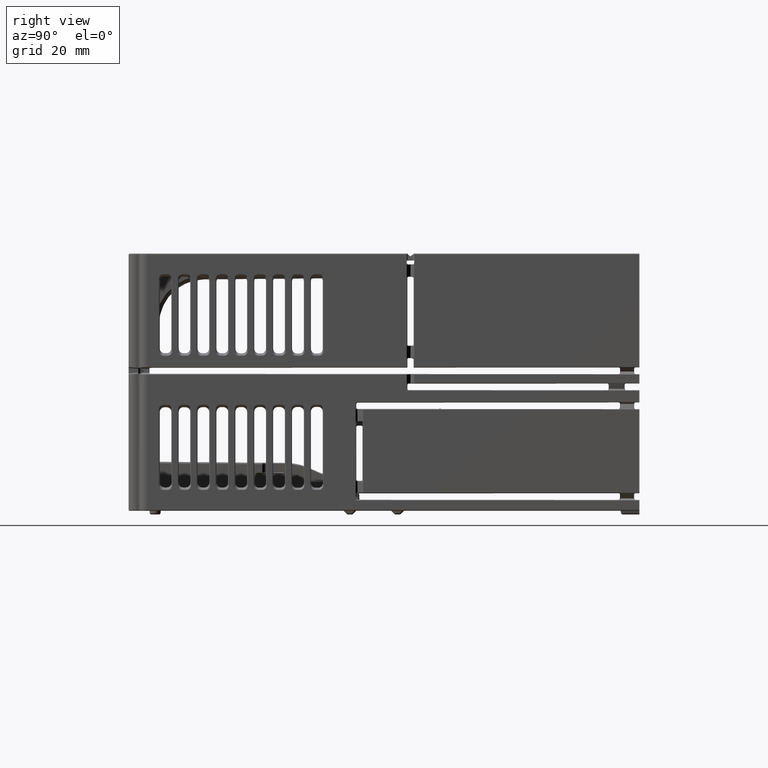
[diagram: clean part render]
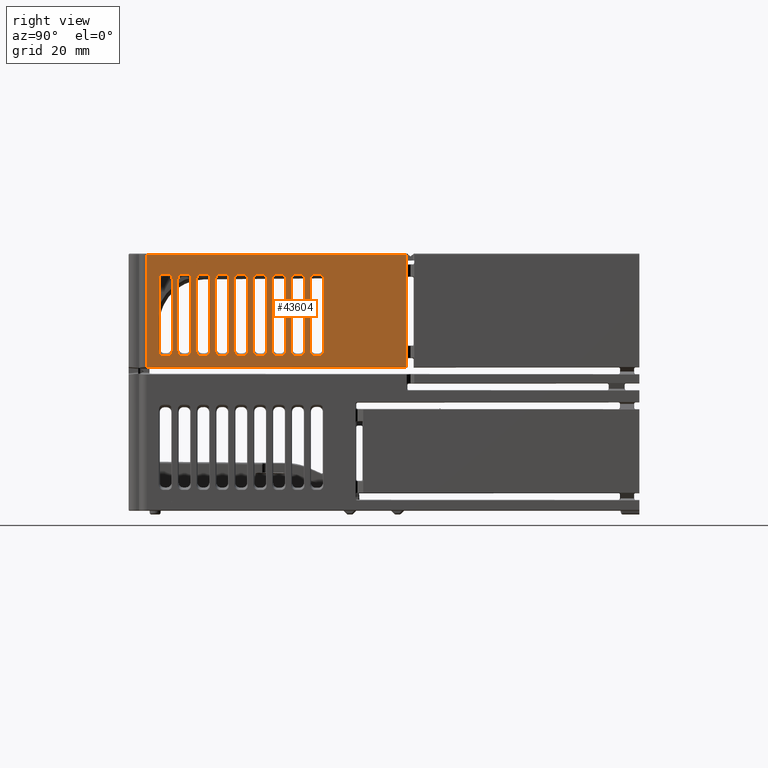
[diagram: same view with one face highlighted and labeled with its STEP entity id]
A machine part, right view. The second image highlights one B-rep face of the part: STEP entity #43604.
In plain terms, the highlighted planar face has unit normal (1, 0, 0).
Its self-contained STEP definition (entity closure, byte-faithful):
#10927=DIRECTION('',(0.E0,0.E0,1.E0));
#10928=VECTOR('',#10927,3.796955668180E0);
#10929=CARTESIAN_POINT('',(6.000000000299E1,7.349999999901E1,1.010152216591E1));
#10930=LINE('',#10929,#10928);
#10935=DIRECTION('',(-1.096325036253E-14,-1.E0,0.E0));
#10936=VECTOR('',#10935,6.87E1);
#10937=CARTESIAN_POINT('',(6.E1,7.35E1,3.77E1));
#10938=LINE('',#10937,#10936);
#10953=DIRECTION('',(2.464171777215E-14,0.E0,-1.E0));
#10954=VECTOR('',#10953,2.97E1);
#10955=CARTESIAN_POINT('',(6.E1,4.8E0,3.77E1));
#10956=LINE('',#10955,#10954);
#10973=DIRECTION('',(0.E0,1.E0,0.E0));
#10974=VECTOR('',#10973,6.869999999993E1);
#10975=CARTESIAN_POINT('',(6.E1,4.8E0,8.E0));
#10976=LINE('',#10975,#10974);
#11963=DIRECTION('',(-6.426154196359E-10,2.042777207806E-10,1.E0));
#11964=VECTOR('',#11963,2.298472089840E0);
#11965=CARTESIAN_POINT('',(6.000000000148E1,7.349999999953E1,3.540152791016E1));
#11966=LINE('',#11965,#11964);
#12052=DIRECTION('',(-3.593003499970E-10,7.116261726308E-11,1.E0));
#12053=VECTOR('',#12052,3.800005744250E0);
#12054=CARTESIAN_POINT('',(6.000000000284E1,7.349999999926E1,3.160152216591E1));
#12055=LINE('',#12054,#12053);
#12192=DIRECTION('',(-8.430323814464E-12,1.434808682724E-11,1.E0));
#12193=VECTOR('',#12192,1.770304433182E1);
#12194=CARTESIAN_POINT('',(6.000000000299E1,7.349999999901E1,1.389847783409E1));
#12195=LINE('',#12194,#12193);
#12273=DIRECTION('',(1.423572486255E-9,-4.377424535684E-10,1.E0));
#12274=VECTOR('',#12273,2.101522165910E0);
#12275=CARTESIAN_POINT('',(6.E1,7.349999999993E1,8.E0));
#12276=LINE('',#12275,#12274);
#12281=DIRECTION('',(0.E0,-8.488408576922E-14,1.E0));
#12282=VECTOR('',#12281,1.897019282618E1);
#12283=CARTESIAN_POINT('',(6.E1,8.000000000001E0,1.226490358691E1));
#12284=LINE('',#12283,#12282);
#12293=CARTESIAN_POINT('',(6.E1,9.226470131490E0,1.1E1));
#12294=CARTESIAN_POINT('',(6.E1,8.811241178423E0,1.1E1));
#12295=CARTESIAN_POINT('',(6.E1,8.301636791238E0,1.132085351895E1));
#12296=CARTESIAN_POINT('',(6.E1,8.000000000001E0,1.184967463384E1));
#12297=CARTESIAN_POINT('',(6.E1,8.000000000003E0,1.226490358691E1));
#12320=DIRECTION('',(-8.143291664895E-14,-1.E0,-1.033180129984E-12));
#12321=VECTOR('',#12320,1.047059737020E0);
#12322=CARTESIAN_POINT('',(6.E1,1.027352986851E1,1.1E1));
#12323=LINE('',#12322,#12321);
#12324=CARTESIAN_POINT('',(6.E1,1.15E1,1.226490358690E1));
#12325=CARTESIAN_POINT('',(6.E1,1.149999999999E1,1.184967463384E1));
#12326=CARTESIAN_POINT('',(6.E1,1.119836320876E1,1.132085351895E1));
#12327=CARTESIAN_POINT('',(6.E1,1.068875882157E1,1.1E1));
#12328=CARTESIAN_POINT('',(6.E1,1.027352986851E1,1.1E1));
#12351=DIRECTION('',(1.086216651873E-14,-2.706177693028E-14,-1.E0));
#12352=VECTOR('',#12351,1.897019282619E1);
#12353=CARTESIAN_POINT('',(6.E1,1.15E1,3.123509641309E1));
#12354=LINE('',#12353,#12352);
#12355=CARTESIAN_POINT('',(6.E1,1.027352986851E1,3.25E1));
#12356=CARTESIAN_POINT('',(6.E1,1.068875882158E1,3.25E1));
#12357=CARTESIAN_POINT('',(6.E1,1.119836320876E1,3.217914648105E1));
#12358=CARTESIAN_POINT('',(6.E1,1.15E1,3.165032536616E1));
#12359=CARTESIAN_POINT('',(6.E1,1.15E1,3.123509641309E1));
#12374=DIRECTION('',(4.953835762815E-13,1.E0,-1.004339305338E-12));
#12375=VECTOR('',#12374,1.047059737019E0);
#12376=CARTESIAN_POINT('',(6.E1,9.226470131490E0,3.25E1));
#12377=LINE('',#12376,#12375);
#12386=CARTESIAN_POINT('',(6.E1,7.999999999998E0,3.123509641309E1));
#12387=CARTESIAN_POINT('',(6.E1,7.999999999997E0,3.165032536616E1));
#12388=CARTESIAN_POINT('',(6.E1,8.301636791234E0,3.217914648106E1));
#12389=CARTESIAN_POINT('',(6.E1,8.811241178422E0,3.25E1));
#12390=CARTESIAN_POINT('',(6.E1,9.226470131490E0,3.25E1));
#12402=DIRECTION('',(0.E0,-1.919607014086E-14,1.E0));
#12403=VECTOR('',#12402,1.897019282618E1);
#12404=CARTESIAN_POINT('',(6.E1,1.3E1,1.226490358691E1));
#12405=LINE('',#12404,#12403);
#12414=CARTESIAN_POINT('',(6.E1,1.422647013149E1,1.1E1));
#12415=CARTESIAN_POINT('',(6.E1,1.381124117842E1,1.1E1));
#12416=CARTESIAN_POINT('',(6.E1,1.330163679124E1,1.132085351895E1));
#12417=CARTESIAN_POINT('',(6.E1,1.3E1,1.184967463384E1));
#12418=CARTESIAN_POINT('',(6.E1,1.3E1,1.226490358691E1));
#12441=DIRECTION('',(-4.750253471194E-14,-1.E0,-1.041662725469E-12));
#12442=VECTOR('',#12441,1.047059737019E0);
#12443=CARTESIAN_POINT('',(6.E1,1.527352986851E1,1.1E1));
#12444=LINE('',#12443,#12442);
#12445=CARTESIAN_POINT('',(6.E1,1.649999999999E1,1.226490358690E1));
#12446=CARTESIAN_POINT('',(6.E1,1.649999999999E1,1.184967463384E1));
#12447=CARTESIAN_POINT('',(6.E1,1.619836320876E1,1.132085351895E1));
#12448=CARTESIAN_POINT('',(6.E1,1.568875882157E1,1.1E1));
#12449=CARTESIAN_POINT('',(6.E1,1.527352986851E1,1.1E1));
#12472=DIRECTION('',(1.498229864652E-14,-7.266414843564E-14,-1.E0));
#12473=VECTOR('',#12472,1.897019282619E1);
#12474=CARTESIAN_POINT('',(6.E1,1.65E1,3.123509641309E1));
#12475=LINE('',#12474,#12473);
#12476=CARTESIAN_POINT('',(6.E1,1.527352986851E1,3.25E1));
#12477=CARTESIAN_POINT('',(6.E1,1.568875882158E1,3.25E1));
#12478=CARTESIAN_POINT('',(6.E1,1.619836320876E1,3.217914648105E1));
#12479=CARTESIAN_POINT('',(6.E1,1.65E1,3.165032536616E1));
#12480=CARTESIAN_POINT('',(6.E1,1.65E1,3.123509641309E1));
#12495=DIRECTION('',(1.492936805232E-13,1.E0,2.714430554968E-13));
#12496=VECTOR('',#12495,1.047059737019E0);
#12497=CARTESIAN_POINT('',(6.E1,1.422647013149E1,3.25E1));
#12498=LINE('',#12497,#12496);
#12507=CARTESIAN_POINT('',(6.E1,1.3E1,3.123509641309E1));
#12508=CARTESIAN_POINT('',(6.E1,1.3E1,3.165032536616E1));
#12509=CARTESIAN_POINT('',(6.E1,1.330163679124E1,3.217914648105E1));
#12510=CARTESIAN_POINT('',(6.E1,1.381124117842E1,3.25E1));
#12511=CARTESIAN_POINT('',(6.E1,1.422647013149E1,3.25E1));
#12523=DIRECTION('',(1.573141357885E-14,7.285142716873E-14,1.E0));
#12524=VECTOR('',#12523,1.897019282618E1);
#12525=CARTESIAN_POINT('',(6.E1,1.8E1,1.226490358691E1));
#12526=LINE('',#12525,#12524);
#12535=CARTESIAN_POINT('',(6.E1,1.922647013149E1,1.1E1));
#12536=CARTESIAN_POINT('',(6.E1,1.881124117842E1,1.1E1));
#12537=CARTESIAN_POINT('',(6.E1,1.830163679124E1,1.132085351895E1));
#12538=CARTESIAN_POINT('',(6.E1,1.8E1,1.184967463384E1));
#12539=CARTESIAN_POINT('',(6.E1,1.8E1,1.226490358691E1));
#12562=DIRECTION('',(4.071645832452E-14,-1.E0,-7.210206161633E-13));
#12563=VECTOR('',#12562,1.047059737019E0);
#12564=CARTESIAN_POINT('',(6.E1,2.027352986851E1,1.1E1));
#12565=LINE('',#12564,#12563);
#12566=CARTESIAN_POINT('',(6.E1,2.15E1,1.226490358690E1));
#12567=CARTESIAN_POINT('',(6.E1,2.15E1,1.184967463384E1));
#12568=CARTESIAN_POINT('',(6.E1,2.119836320876E1,1.132085351894E1));
#12569=CARTESIAN_POINT('',(6.E1,2.068875882157E1,1.1E1));
#12570=CARTESIAN_POINT('',(6.E1,2.027352986851E1,1.1E1));
#12593=DIRECTION('',(1.161128145106E-14,-4.026492761253E-14,-1.E0));
#12594=VECTOR('',#12593,1.897019282619E1);
#12595=CARTESIAN_POINT('',(6.E1,2.15E1,3.123509641309E1));
#12596=LINE('',#12595,#12594);
#12597=CARTESIAN_POINT('',(6.E1,2.027352986851E1,3.25E1));
#12598=CARTESIAN_POINT('',(6.E1,2.068875882158E1,3.25E1));
#12599=CARTESIAN_POINT('',(6.E1,2.119836320876E1,3.217914648105E1));
#12600=CARTESIAN_POINT('',(6.E1,2.15E1,3.165032536616E1));
#12601=CARTESIAN_POINT('',(6.E1,2.15E1,3.123509641309E1));
#12616=DIRECTION('',(-1.967962152352E-13,1.E0,1.628658332981E-12));
#12617=VECTOR('',#12616,1.047059737019E0);
#12618=CARTESIAN_POINT('',(6.E1,1.922647013149E1,3.25E1));
#12619=LINE('',#12618,#12617);
#12628=CARTESIAN_POINT('',(6.E1,1.8E1,3.123509641309E1));
#12629=CARTESIAN_POINT('',(6.E1,1.8E1,3.165032536616E1));
#12630=CARTESIAN_POINT('',(6.E1,1.830163679124E1,3.217914648105E1));
#12631=CARTESIAN_POINT('',(6.E1,1.881124117842E1,3.25E1));
#12632=CARTESIAN_POINT('',(6.E1,1.922647013149E1,3.25E1));
#12644=DIRECTION('',(1.161128145106E-14,2.322256290211E-14,1.E0));
#12645=VECTOR('',#12644,1.897019282618E1);
#12646=CARTESIAN_POINT('',(6.E1,2.3E1,1.226490358691E1));
#12647=LINE('',#12646,#12645);
#12656=CARTESIAN_POINT('',(6.E1,2.422647013149E1,1.1E1));
#12657=CARTESIAN_POINT('',(6.E1,2.381124117842E1,1.1E1));
#12658=CARTESIAN_POINT('',(6.E1,2.330163679124E1,1.132085351895E1));
#12659=CARTESIAN_POINT('',(6.E1,2.3E1,1.184967463384E1));
#12660=CARTESIAN_POINT('',(6.E1,2.3E1,1.226490358691E1));
#12683=DIRECTION('',(4.071645832452E-14,-1.E0,-7.193240970665E-13));
#12684=VECTOR('',#12683,1.047059737019E0);
#12685=CARTESIAN_POINT('',(6.E1,2.527352986851E1,1.1E1));
#12686=LINE('',#12685,#12684);
#12687=CARTESIAN_POINT('',(6.E1,2.65E1,1.226490358690E1));
#12688=CARTESIAN_POINT('',(6.E1,2.65E1,1.184967463384E1));
#12689=CARTESIAN_POINT('',(6.E1,2.619836320876E1,1.132085351895E1));
#12690=CARTESIAN_POINT('',(6.E1,2.568875882157E1,1.1E1));
#12691=CARTESIAN_POINT('',(6.E1,2.527352986851E1,1.1E1));
#12714=DIRECTION('',(1.348406878187E-14,-6.367476924772E-14,-1.E0));
#12715=VECTOR('',#12714,1.897019282619E1);
#12716=CARTESIAN_POINT('',(6.E1,2.65E1,3.123509641309E1));
#12717=LINE('',#12716,#12715);
#12718=CARTESIAN_POINT('',(6.E1,2.527352986851E1,3.25E1));
#12719=CARTESIAN_POINT('',(6.E1,2.568875882158E1,3.25E1));
#12720=CARTESIAN_POINT('',(6.E1,2.619836320876E1,3.217914648105E1));
#12721=CARTESIAN_POINT('',(6.E1,2.65E1,3.165032536616E1));
#12722=CARTESIAN_POINT('',(6.E1,2.65E1,3.123509641309E1));
#12737=DIRECTION('',(-6.786076387420E-14,1.E0,1.180777291411E-12));
#12738=VECTOR('',#12737,1.047059737019E0);
#12739=CARTESIAN_POINT('',(6.E1,2.422647013149E1,3.25E1));
#12740=LINE('',#12739,#12738);
#12749=CARTESIAN_POINT('',(6.E1,2.3E1,3.123509641309E1));
#12750=CARTESIAN_POINT('',(6.E1,2.3E1,3.165032536616E1));
#12751=CARTESIAN_POINT('',(6.E1,2.330163679124E1,3.217914648105E1));
#12752=CARTESIAN_POINT('',(6.E1,2.381124117842E1,3.25E1));
#12753=CARTESIAN_POINT('',(6.E1,2.422647013149E1,3.25E1));
#12765=DIRECTION('',(-4.343088887947E-13,1.E0,1.703305173242E-12));
#12766=VECTOR('',#12765,1.047059737019E0);
#12767=CARTESIAN_POINT('',(6.E1,2.922647013149E1,3.25E1));
#12768=LINE('',#12767,#12766);
#12777=CARTESIAN_POINT('',(6.E1,2.800000000001E1,3.123509641310E1));
#12778=CARTESIAN_POINT('',(6.E1,2.800000000001E1,3.165032536616E1));
#12779=CARTESIAN_POINT('',(6.E1,2.830163679124E1,3.217914648105E1));
#12780=CARTESIAN_POINT('',(6.E1,2.881124117843E1,3.25E1));
#12781=CARTESIAN_POINT('',(6.E1,2.922647013149E1,3.25E1));
#12793=DIRECTION('',(2.022610317281E-14,1.303459982248E-13,1.E0));
#12794=VECTOR('',#12793,1.897019282619E1);
#12795=CARTESIAN_POINT('',(6.E1,2.8E1,1.226490358691E1));
#12796=LINE('',#12795,#12794);
#12805=CARTESIAN_POINT('',(6.E1,2.922647013149E1,1.1E1));
#12806=CARTESIAN_POINT('',(6.E1,2.881124117842E1,1.1E1));
#12807=CARTESIAN_POINT('',(6.E1,2.830163679124E1,1.132085351895E1));
#12808=CARTESIAN_POINT('',(6.E1,2.8E1,1.184967463384E1));
#12809=CARTESIAN_POINT('',(6.E1,2.8E1,1.226490358691E1));
#12832=DIRECTION('',(-2.782291318842E-13,-1.E0,-1.944210884996E-12));
#12833=VECTOR('',#12832,1.047059737019E0);
#12834=CARTESIAN_POINT('',(6.E1,3.027352986851E1,1.1E1));
#12835=LINE('',#12834,#12833);
#12836=CARTESIAN_POINT('',(6.E1,3.15E1,1.226490358690E1));
#12837=CARTESIAN_POINT('',(6.E1,3.149999999999E1,1.184967463384E1));
#12838=CARTESIAN_POINT('',(6.E1,3.119836320876E1,1.132085351895E1));
#12839=CARTESIAN_POINT('',(6.E1,3.068875882157E1,1.1E1));
#12840=CARTESIAN_POINT('',(6.E1,3.027352986851E1,1.1E1));
#12860=DIRECTION('',(1.947698824048E-14,-1.176110443752E-13,-1.E0));
#12861=VECTOR('',#12860,1.897019282619E1);
#12862=CARTESIAN_POINT('',(6.E1,3.15E1,3.123509641309E1));
#12863=LINE('',#12862,#12861);
#12864=CARTESIAN_POINT('',(6.E1,3.027352986851E1,3.25E1));
#12865=CARTESIAN_POINT('',(6.E1,3.068875882158E1,3.25E1));
#12866=CARTESIAN_POINT('',(6.E1,3.119836320877E1,3.217914648105E1));
#12867=CARTESIAN_POINT('',(6.E1,3.15E1,3.165032536616E1));
#12868=CARTESIAN_POINT('',(6.E1,3.15E1,3.123509641309E1));
#12883=DIRECTION('',(8.143291664901E-14,1.E0,-2.307265971722E-13));
#12884=VECTOR('',#12883,1.047059737019E0);
#12885=CARTESIAN_POINT('',(6.E1,3.422647013149E1,3.25E1));
#12886=LINE('',#12885,#12884);
#12895=CARTESIAN_POINT('',(6.E1,3.3E1,3.123509641310E1));
#12896=CARTESIAN_POINT('',(6.E1,3.3E1,3.165032536616E1));
#12897=CARTESIAN_POINT('',(6.E1,3.330163679124E1,3.217914648105E1));
#12898=CARTESIAN_POINT('',(6.E1,3.381124117843E1,3.25E1));
#12899=CARTESIAN_POINT('',(6.E1,3.422647013149E1,3.25E1));
#12911=DIRECTION('',(1.423318371420E-14,8.127897015739E-14,1.E0));
#12912=VECTOR('',#12911,1.897019282619E1);
#12913=CARTESIAN_POINT('',(6.E1,3.3E1,1.226490358691E1));
#12914=LINE('',#12913,#12912);
#12923=CARTESIAN_POINT('',(6.E1,3.422647013149E1,1.1E1));
#12924=CARTESIAN_POINT('',(6.E1,3.381124117842E1,1.1E1));
#12925=CARTESIAN_POINT('',(6.E1,3.330163679124E1,1.132085351895E1));
#12926=CARTESIAN_POINT('',(6.E1,3.3E1,1.184967463384E1));
#12927=CARTESIAN_POINT('',(6.E1,3.3E1,1.226490358691E1));
#12950=DIRECTION('',(-2.918012846590E-13,-1.E0,-1.945907404093E-12));
#12951=VECTOR('',#12950,1.047059737019E0);
#12952=CARTESIAN_POINT('',(6.E1,3.527352986851E1,1.1E1));
#12953=LINE('',#12952,#12951);
#12954=CARTESIAN_POINT('',(6.E1,3.649999999999E1,1.226490358690E1));
#12955=CARTESIAN_POINT('',(6.E1,3.649999999999E1,1.184967463384E1));
#12956=CARTESIAN_POINT('',(6.E1,3.619836320876E1,1.132085351895E1));
#12957=CARTESIAN_POINT('',(6.E1,3.568875882157E1,1.1E1));
#12958=CARTESIAN_POINT('',(6.E1,3.527352986851E1,1.1E1));
#12978=DIRECTION('',(1.348406878187E-14,-5.580906245830E-14,-1.E0));
#12979=VECTOR('',#12978,1.897019282619E1);
#12980=CARTESIAN_POINT('',(6.E1,3.65E1,3.123509641309E1));
#12981=LINE('',#12980,#12979);
#12982=CARTESIAN_POINT('',(6.E1,3.527352986851E1,3.25E1));
#12983=CARTESIAN_POINT('',(6.E1,3.568875882158E1,3.25E1));
#12984=CARTESIAN_POINT('',(6.E1,3.619836320876E1,3.217914648105E1));
#12985=CARTESIAN_POINT('',(6.E1,3.65E1,3.165032536616E1));
#12986=CARTESIAN_POINT('',(6.E1,3.65E1,3.123509641309E1));
#13001=DIRECTION('',(0.E0,-1.385862624804E-14,1.E0));
#13002=VECTOR('',#13001,1.897019282618E1);
#13003=CARTESIAN_POINT('',(6.E1,3.8E1,1.226490358691E1));
#13004=LINE('',#13003,#13002);
#13013=CARTESIAN_POINT('',(6.E1,3.922647013149E1,1.1E1));
#13014=CARTESIAN_POINT('',(6.E1,3.881124117842E1,1.1E1));
#13015=CARTESIAN_POINT('',(6.E1,3.830163679124E1,1.132085351895E1));
#13016=CARTESIAN_POINT('',(6.E1,3.8E1,1.184967463384E1));
#13017=CARTESIAN_POINT('',(6.E1,3.8E1,1.226490358691E1));
#13040=DIRECTION('',(1.967962152352E-13,-1.E0,-1.374180468452E-13));
#13041=VECTOR('',#13040,1.047059737019E0);
#13042=CARTESIAN_POINT('',(6.E1,4.027352986851E1,1.1E1));
#13043=LINE('',#13042,#13041);
#13044=CARTESIAN_POINT('',(6.E1,4.15E1,1.226490358690E1));
#13045=CARTESIAN_POINT('',(6.E1,4.15E1,1.184967463384E1));
#13046=CARTESIAN_POINT('',(6.E1,4.119836320876E1,1.132085351894E1));
#13047=CARTESIAN_POINT('',(6.E1,4.068875882157E1,1.1E1));
#13048=CARTESIAN_POINT('',(6.E1,4.027352986851E1,1.1E1));
#13071=DIRECTION('',(0.E0,-2.284800543595E-14,-1.E0));
#13072=VECTOR('',#13071,1.897019282619E1);
#13073=CARTESIAN_POINT('',(6.E1,4.15E1,3.123509641309E1));
#13074=LINE('',#13073,#13072);
#13075=CARTESIAN_POINT('',(6.E1,4.027352986851E1,3.25E1));
#13076=CARTESIAN_POINT('',(6.E1,4.068875882158E1,3.25E1));
#13077=CARTESIAN_POINT('',(6.E1,4.119836320876E1,3.217914648105E1));
#13078=CARTESIAN_POINT('',(6.E1,4.15E1,3.165032536616E1));
#13079=CARTESIAN_POINT('',(6.E1,4.15E1,3.123509641309E1));
#13094=DIRECTION('',(1.425076041358E-13,1.E0,3.935924304703E-13));
#13095=VECTOR('',#13094,1.047059737019E0);
#13096=CARTESIAN_POINT('',(6.E1,3.922647013149E1,3.25E1));
#13097=LINE('',#13096,#13095);
#13106=CARTESIAN_POINT('',(6.E1,3.8E1,3.123509641309E1));
#13107=CARTESIAN_POINT('',(6.E1,3.8E1,3.165032536616E1));
#13108=CARTESIAN_POINT('',(6.E1,3.830163679124E1,3.217914648105E1));
#13109=CARTESIAN_POINT('',(6.E1,3.881124117842E1,3.25E1));
#13110=CARTESIAN_POINT('',(6.E1,3.922647013149E1,3.25E1));
#13122=DIRECTION('',(1.985154570665E-14,1.086216651873E-13,1.E0));
#13123=VECTOR('',#13122,1.897019282618E1);
#13124=CARTESIAN_POINT('',(6.E1,4.3E1,1.226490358691E1));
#13125=LINE('',#13124,#13123);
#13134=CARTESIAN_POINT('',(6.E1,4.422647013149E1,1.1E1));
#13135=CARTESIAN_POINT('',(6.E1,4.381124117842E1,1.1E1));
#13136=CARTESIAN_POINT('',(6.E1,4.330163679124E1,1.132085351894E1));
#13137=CARTESIAN_POINT('',(6.E1,4.3E1,1.184967463384E1));
#13138=CARTESIAN_POINT('',(6.E1,4.3E1,1.226490358691E1));
#13161=DIRECTION('',(-1.967962152352E-13,-1.E0,-1.620175737496E-12));
#13162=VECTOR('',#13161,1.047059737019E0);
#13163=CARTESIAN_POINT('',(6.E1,4.527352986851E1,1.1E1));
#13164=LINE('',#13163,#13162);
#13165=CARTESIAN_POINT('',(6.E1,4.65E1,1.226490358690E1));
#13166=CARTESIAN_POINT('',(6.E1,4.65E1,1.184967463384E1));
#13167=CARTESIAN_POINT('',(6.E1,4.619836320876E1,1.132085351895E1));
#13168=CARTESIAN_POINT('',(6.E1,4.568875882157E1,1.1E1));
#13169=CARTESIAN_POINT('',(6.E1,4.527352986851E1,1.1E1));
#13192=DIRECTION('',(1.123672398489E-14,-4.644512580422E-14,-1.E0));
#13193=VECTOR('',#13192,1.897019282619E1);
#13194=CARTESIAN_POINT('',(6.E1,4.65E1,3.123509641309E1));
#13195=LINE('',#13194,#13193);
#13196=CARTESIAN_POINT('',(6.E1,4.527352986851E1,3.25E1));
#13197=CARTESIAN_POINT('',(6.E1,4.568875882158E1,3.25E1));
#13198=CARTESIAN_POINT('',(6.E1,4.619836320876E1,3.217914648105E1));
#13199=CARTESIAN_POINT('',(6.E1,4.65E1,3.165032536616E1));
#13200=CARTESIAN_POINT('',(6.E1,4.65E1,3.123509641309E1));
#13215=DIRECTION('',(-1.560797569107E-13,1.E0,1.472578576070E-12));
#13216=VECTOR('',#13215,1.047059737019E0);
#13217=CARTESIAN_POINT('',(6.E1,4.422647013149E1,3.25E1));
#13218=LINE('',#13217,#13216);
#13227=CARTESIAN_POINT('',(6.E1,4.3E1,3.123509641309E1));
#13228=CARTESIAN_POINT('',(6.E1,4.3E1,3.165032536616E1));
#13229=CARTESIAN_POINT('',(6.E1,4.330163679124E1,3.217914648105E1));
#13230=CARTESIAN_POINT('',(6.E1,4.381124117842E1,3.25E1));
#13231=CARTESIAN_POINT('',(6.E1,4.422647013149E1,3.25E1));
#13243=DIRECTION('',(1.161128145106E-14,2.846636742840E-14,1.E0));
#13244=VECTOR('',#13243,1.897019282618E1);
#13245=CARTESIAN_POINT('',(6.E1,4.8E1,1.226490358691E1));
#13246=LINE('',#13245,#13244);
#13255=CARTESIAN_POINT('',(6.E1,4.922647013149E1,1.1E1));
#13256=CARTESIAN_POINT('',(6.E1,4.881124117842E1,1.1E1));
#13257=CARTESIAN_POINT('',(6.E1,4.830163679124E1,1.132085351895E1));
#13258=CARTESIAN_POINT('',(6.E1,4.8E1,1.184967463384E1));
#13259=CARTESIAN_POINT('',(6.E1,4.8E1,1.226490358691E1));
#13282=DIRECTION('',(-8.821899303646E-14,-1.E0,-1.219797230639E-12));
#13283=VECTOR('',#13282,1.047059737019E0);
#13284=CARTESIAN_POINT('',(6.E1,5.027352986851E1,1.1E1));
#13285=LINE('',#13284,#13283);
#13286=CARTESIAN_POINT('',(6.E1,5.15E1,1.226490358690E1));
#13287=CARTESIAN_POINT('',(6.E1,5.15E1,1.184967463384E1));
#13288=CARTESIAN_POINT('',(6.E1,5.119836320876E1,1.132085351895E1));
#13289=CARTESIAN_POINT('',(6.E1,5.068875882157E1,1.1E1));
#13290=CARTESIAN_POINT('',(6.E1,5.027352986851E1,1.1E1));
#13313=DIRECTION('',(1.685508597734E-14,-9.289025160844E-14,-1.E0));
#13314=VECTOR('',#13313,1.897019282619E1);
#13315=CARTESIAN_POINT('',(6.E1,5.15E1,3.123509641309E1));
#13316=LINE('',#13315,#13314);
#13317=CARTESIAN_POINT('',(6.E1,5.027352986851E1,3.25E1));
#13318=CARTESIAN_POINT('',(6.E1,5.068875882158E1,3.25E1));
#13319=CARTESIAN_POINT('',(6.E1,5.119836320876E1,3.217914648105E1));
#13320=CARTESIAN_POINT('',(6.E1,5.15E1,3.165032536616E1));
#13321=CARTESIAN_POINT('',(6.E1,5.15E1,3.123509641309E1));
#13336=DIRECTION('',(-8.821899303645E-14,1.E0,1.302926666385E-12));
#13337=VECTOR('',#13336,1.047059737019E0);
#13338=CARTESIAN_POINT('',(6.E1,4.922647013149E1,3.25E1));
#13339=LINE('',#13338,#13337);
#13348=CARTESIAN_POINT('',(6.E1,4.8E1,3.123509641309E1));
#13349=CARTESIAN_POINT('',(6.E1,4.8E1,3.165032536616E1));
#13350=CARTESIAN_POINT('',(6.E1,4.830163679124E1,3.217914648105E1));
#13351=CARTESIAN_POINT('',(6.E1,4.881124117842E1,3.25E1));
#13352=CARTESIAN_POINT('',(6.E1,4.922647013149E1,3.25E1));
#25219=CARTESIAN_POINT('',(6.E1,8.000000000001E0,1.226490358691E1));
#25220=CARTESIAN_POINT('',(6.E1,8.E0,3.123509641309E1));
#25221=VERTEX_POINT('',#25219);
#25222=VERTEX_POINT('',#25220);
#25223=CARTESIAN_POINT('',(6.E1,1.027352986851E1,1.1E1));
#25224=CARTESIAN_POINT('',(6.E1,9.226470131490E0,1.1E1));
#25225=VERTEX_POINT('',#25223);
#25226=VERTEX_POINT('',#25224);
#25227=CARTESIAN_POINT('',(6.E1,1.15E1,3.123509641309E1));
#25228=CARTESIAN_POINT('',(6.E1,1.15E1,1.226490358691E1));
#25229=VERTEX_POINT('',#25227);
#25230=VERTEX_POINT('',#25228);
#25231=CARTESIAN_POINT('',(6.E1,9.226470131490E0,3.25E1));
#25232=CARTESIAN_POINT('',(6.E1,1.027352986851E1,3.25E1));
#25233=VERTEX_POINT('',#25231);
#25234=VERTEX_POINT('',#25232);
#25235=CARTESIAN_POINT('',(6.E1,1.3E1,1.226490358691E1));
#25236=CARTESIAN_POINT('',(6.E1,1.3E1,3.123509641309E1));
#25237=VERTEX_POINT('',#25235);
#25238=VERTEX_POINT('',#25236);
#25239=CARTESIAN_POINT('',(6.E1,1.527352986851E1,1.1E1));
#25240=CARTESIAN_POINT('',(6.E1,1.422647013149E1,1.1E1));
#25241=VERTEX_POINT('',#25239);
#25242=VERTEX_POINT('',#25240);
#25243=CARTESIAN_POINT('',(6.E1,1.65E1,3.123509641309E1));
#25244=CARTESIAN_POINT('',(6.E1,1.65E1,1.226490358691E1));
#25245=VERTEX_POINT('',#25243);
#25246=VERTEX_POINT('',#25244);
#25247=CARTESIAN_POINT('',(6.E1,1.422647013149E1,3.25E1));
#25248=CARTESIAN_POINT('',(6.E1,1.527352986851E1,3.25E1));
#25249=VERTEX_POINT('',#25247);
#25250=VERTEX_POINT('',#25248);
#25251=CARTESIAN_POINT('',(6.E1,1.8E1,1.226490358691E1));
#25252=CARTESIAN_POINT('',(6.E1,1.8E1,3.123509641309E1));
#25253=VERTEX_POINT('',#25251);
#25254=VERTEX_POINT('',#25252);
#25255=CARTESIAN_POINT('',(6.E1,2.027352986851E1,1.1E1));
#25256=CARTESIAN_POINT('',(6.E1,1.922647013149E1,1.1E1));
#25257=VERTEX_POINT('',#25255);
#25258=VERTEX_POINT('',#25256);
#25259=CARTESIAN_POINT('',(6.E1,2.15E1,3.123509641309E1));
#25260=CARTESIAN_POINT('',(6.E1,2.15E1,1.226490358691E1));
#25261=VERTEX_POINT('',#25259);
#25262=VERTEX_POINT('',#25260);
#25263=CARTESIAN_POINT('',(6.E1,1.922647013149E1,3.25E1));
#25264=CARTESIAN_POINT('',(6.E1,2.027352986851E1,3.25E1));
#25265=VERTEX_POINT('',#25263);
#25266=VERTEX_POINT('',#25264);
#25267=CARTESIAN_POINT('',(6.E1,2.3E1,1.226490358691E1));
#25268=CARTESIAN_POINT('',(6.E1,2.3E1,3.123509641309E1));
#25269=VERTEX_POINT('',#25267);
#25270=VERTEX_POINT('',#25268);
#25271=CARTESIAN_POINT('',(6.E1,2.527352986851E1,1.1E1));
#25272=CARTESIAN_POINT('',(6.E1,2.422647013149E1,1.1E1));
#25273=VERTEX_POINT('',#25271);
#25274=VERTEX_POINT('',#25272);
#25275=CARTESIAN_POINT('',(6.E1,2.65E1,3.123509641309E1));
#25276=CARTESIAN_POINT('',(6.E1,2.65E1,1.226490358691E1));
#25277=VERTEX_POINT('',#25275);
#25278=VERTEX_POINT('',#25276);
#25279=CARTESIAN_POINT('',(6.E1,2.422647013149E1,3.25E1));
#25280=CARTESIAN_POINT('',(6.E1,2.527352986851E1,3.25E1));
#25281=VERTEX_POINT('',#25279);
#25282=VERTEX_POINT('',#25280);
#25283=CARTESIAN_POINT('',(6.E1,2.922647013149E1,3.25E1));
#25284=CARTESIAN_POINT('',(6.E1,3.027352986851E1,3.25E1));
#25285=VERTEX_POINT('',#25283);
#25286=VERTEX_POINT('',#25284);
#25287=CARTESIAN_POINT('',(6.E1,2.8E1,1.226490358691E1));
#25288=CARTESIAN_POINT('',(6.E1,2.8E1,3.123509641309E1));
#25289=VERTEX_POINT('',#25287);
#25290=VERTEX_POINT('',#25288);
#25291=CARTESIAN_POINT('',(6.E1,3.027352986851E1,1.1E1));
#25292=CARTESIAN_POINT('',(6.E1,2.922647013149E1,1.1E1));
#25293=VERTEX_POINT('',#25291);
#25294=VERTEX_POINT('',#25292);
#25295=CARTESIAN_POINT('',(6.E1,3.15E1,3.123509641309E1));
#25296=CARTESIAN_POINT('',(6.E1,3.15E1,1.226490358691E1));
#25297=VERTEX_POINT('',#25295);
#25298=VERTEX_POINT('',#25296);
#25299=CARTESIAN_POINT('',(6.E1,3.422647013149E1,3.25E1));
#25300=CARTESIAN_POINT('',(6.E1,3.527352986851E1,3.25E1));
#25301=VERTEX_POINT('',#25299);
#25302=VERTEX_POINT('',#25300);
#25303=CARTESIAN_POINT('',(6.E1,3.3E1,1.226490358691E1));
#25304=CARTESIAN_POINT('',(6.E1,3.3E1,3.123509641309E1));
#25305=VERTEX_POINT('',#25303);
#25306=VERTEX_POINT('',#25304);
#25307=CARTESIAN_POINT('',(6.E1,3.527352986851E1,1.1E1));
#25308=CARTESIAN_POINT('',(6.E1,3.422647013149E1,1.1E1));
#25309=VERTEX_POINT('',#25307);
#25310=VERTEX_POINT('',#25308);
#25311=CARTESIAN_POINT('',(6.E1,3.65E1,3.123509641309E1));
#25312=CARTESIAN_POINT('',(6.E1,3.65E1,1.226490358691E1));
#25313=VERTEX_POINT('',#25311);
#25314=VERTEX_POINT('',#25312);
#25315=CARTESIAN_POINT('',(6.E1,3.8E1,1.226490358691E1));
#25316=CARTESIAN_POINT('',(6.E1,3.8E1,3.123509641309E1));
#25317=VERTEX_POINT('',#25315);
#25318=VERTEX_POINT('',#25316);
#25319=CARTESIAN_POINT('',(6.E1,4.027352986851E1,1.1E1));
#25320=CARTESIAN_POINT('',(6.E1,3.922647013149E1,1.1E1));
#25321=VERTEX_POINT('',#25319);
#25322=VERTEX_POINT('',#25320);
#25323=CARTESIAN_POINT('',(6.E1,4.15E1,3.123509641309E1));
#25324=CARTESIAN_POINT('',(6.E1,4.15E1,1.226490358691E1));
#25325=VERTEX_POINT('',#25323);
#25326=VERTEX_POINT('',#25324);
#25327=CARTESIAN_POINT('',(6.E1,3.922647013149E1,3.25E1));
#25328=CARTESIAN_POINT('',(6.E1,4.027352986851E1,3.25E1));
#25329=VERTEX_POINT('',#25327);
#25330=VERTEX_POINT('',#25328);
#25331=CARTESIAN_POINT('',(6.E1,4.3E1,1.226490358691E1));
#25332=CARTESIAN_POINT('',(6.E1,4.3E1,3.123509641309E1));
#25333=VERTEX_POINT('',#25331);
#25334=VERTEX_POINT('',#25332);
#25335=CARTESIAN_POINT('',(6.E1,4.527352986851E1,1.1E1));
#25336=CARTESIAN_POINT('',(6.E1,4.422647013149E1,1.1E1));
#25337=VERTEX_POINT('',#25335);
#25338=VERTEX_POINT('',#25336);
#25339=CARTESIAN_POINT('',(6.E1,4.65E1,3.123509641309E1));
#25340=CARTESIAN_POINT('',(6.E1,4.65E1,1.226490358691E1));
#25341=VERTEX_POINT('',#25339);
#25342=VERTEX_POINT('',#25340);
#25343=CARTESIAN_POINT('',(6.E1,4.422647013149E1,3.25E1));
#25344=CARTESIAN_POINT('',(6.E1,4.527352986851E1,3.25E1));
#25345=VERTEX_POINT('',#25343);
#25346=VERTEX_POINT('',#25344);
#25347=CARTESIAN_POINT('',(6.E1,4.8E1,1.226490358691E1));
#25348=CARTESIAN_POINT('',(6.E1,4.8E1,3.123509641309E1));
#25349=VERTEX_POINT('',#25347);
#25350=VERTEX_POINT('',#25348);
#25351=CARTESIAN_POINT('',(6.E1,5.027352986851E1,1.1E1));
#25352=CARTESIAN_POINT('',(6.E1,4.922647013149E1,1.1E1));
#25353=VERTEX_POINT('',#25351);
#25354=VERTEX_POINT('',#25352);
#25355=CARTESIAN_POINT('',(6.E1,5.15E1,3.123509641309E1));
#25356=CARTESIAN_POINT('',(6.E1,5.15E1,1.226490358691E1));
#25357=VERTEX_POINT('',#25355);
#25358=VERTEX_POINT('',#25356);
#25359=CARTESIAN_POINT('',(6.E1,4.922647013149E1,3.25E1));
#25360=CARTESIAN_POINT('',(6.E1,5.027352986851E1,3.25E1));
#25361=VERTEX_POINT('',#25359);
#25362=VERTEX_POINT('',#25360);
#25445=CARTESIAN_POINT('',(6.000000000148E1,7.349999999953E1,3.540152791016E1));
#25446=CARTESIAN_POINT('',(6.E1,7.35E1,3.77E1));
#25447=VERTEX_POINT('',#25445);
#25448=VERTEX_POINT('',#25446);
#25449=CARTESIAN_POINT('',(6.000000000299E1,7.349999999901E1,1.389847783409E1));
#25450=CARTESIAN_POINT('',(6.000000000284E1,7.349999999926E1,3.160152216591E1));
#25451=VERTEX_POINT('',#25449);
#25452=VERTEX_POINT('',#25450);
#25453=CARTESIAN_POINT('',(6.E1,7.349999999993E1,8.E0));
#25454=CARTESIAN_POINT('',(6.000000000299E1,7.349999999901E1,1.010152216591E1));
#25455=VERTEX_POINT('',#25453);
#25456=VERTEX_POINT('',#25454);
#25457=CARTESIAN_POINT('',(6.E1,4.8E0,8.E0));
#25458=VERTEX_POINT('',#25457);
#25567=CARTESIAN_POINT('',(6.E1,4.8E0,3.77E1));
#25568=VERTEX_POINT('',#25567);
#43420=CARTESIAN_POINT('',(6.E1,3.915E1,2.285E1));
#43421=DIRECTION('',(1.E0,0.E0,0.E0));
#43422=DIRECTION('',(0.E0,0.E0,-1.E0));
#43423=AXIS2_PLACEMENT_3D('',#43420,#43421,#43422);
#43424=PLANE('',#43423);
#43426=ORIENTED_EDGE('',*,*,#43425,.F.);
#43428=ORIENTED_EDGE('',*,*,#43427,.F.);
#43430=ORIENTED_EDGE('',*,*,#43429,.F.);
#43432=ORIENTED_EDGE('',*,*,#43431,.F.);
#43433=ORIENTED_EDGE('',*,*,#43410,.F.);
#43435=ORIENTED_EDGE('',*,*,#43434,.F.);
#43437=ORIENTED_EDGE('',*,*,#43436,.F.);
#43439=ORIENTED_EDGE('',*,*,#43438,.F.);
#43440=EDGE_LOOP('',(#43426,#43428,#43430,#43432,#43433,#43435,#43437,#43439));
#43441=FACE_OUTER_BOUND('',#43440,.F.);
#43443=ORIENTED_EDGE('',*,*,#43442,.F.);
#43445=ORIENTED_EDGE('',*,*,#43444,.F.);
#43447=ORIENTED_EDGE('',*,*,#43446,.F.);
#43449=ORIENTED_EDGE('',*,*,#43448,.F.);
#43451=ORIENTED_EDGE('',*,*,#43450,.F.);
#43453=ORIENTED_EDGE('',*,*,#43452,.F.);
#43455=ORIENTED_EDGE('',*,*,#43454,.F.);
#43457=ORIENTED_EDGE('',*,*,#43456,.F.);
#43458=EDGE_LOOP('',(#43443,#43445,#43447,#43449,#43451,#43453,#43455,#43457));
#43459=FACE_BOUND('',#43458,.F.);
#43461=ORIENTED_EDGE('',*,*,#43460,.F.);
#43463=ORIENTED_EDGE('',*,*,#43462,.F.);
#43465=ORIENTED_EDGE('',*,*,#43464,.F.);
#43467=ORIENTED_EDGE('',*,*,#43466,.F.);
#43469=ORIENTED_EDGE('',*,*,#43468,.F.);
#43471=ORIENTED_EDGE('',*,*,#43470,.F.);
#43473=ORIENTED_EDGE('',*,*,#43472,.F.);
#43475=ORIENTED_EDGE('',*,*,#43474,.F.);
#43476=EDGE_LOOP('',(#43461,#43463,#43465,#43467,#43469,#43471,#43473,#43475));
#43477=FACE_BOUND('',#43476,.F.);
#43479=ORIENTED_EDGE('',*,*,#43478,.F.);
#43481=ORIENTED_EDGE('',*,*,#43480,.F.);
#43483=ORIENTED_EDGE('',*,*,#43482,.F.);
#43485=ORIENTED_EDGE('',*,*,#43484,.F.);
#43487=ORIENTED_EDGE('',*,*,#43486,.F.);
#43489=ORIENTED_EDGE('',*,*,#43488,.F.);
#43491=ORIENTED_EDGE('',*,*,#43490,.F.);
#43493=ORIENTED_EDGE('',*,*,#43492,.F.);
#43494=EDGE_LOOP('',(#43479,#43481,#43483,#43485,#43487,#43489,#43491,#43493));
#43495=FACE_BOUND('',#43494,.F.);
#43497=ORIENTED_EDGE('',*,*,#43496,.F.);
#43499=ORIENTED_EDGE('',*,*,#43498,.F.);
#43501=ORIENTED_EDGE('',*,*,#43500,.F.);
#43503=ORIENTED_EDGE('',*,*,#43502,.F.);
#43505=ORIENTED_EDGE('',*,*,#43504,.F.);
#43507=ORIENTED_EDGE('',*,*,#43506,.F.);
#43509=ORIENTED_EDGE('',*,*,#43508,.F.);
#43511=ORIENTED_EDGE('',*,*,#43510,.F.);
#43512=EDGE_LOOP('',(#43497,#43499,#43501,#43503,#43505,#43507,#43509,#43511));
#43513=FACE_BOUND('',#43512,.F.);
#43515=ORIENTED_EDGE('',*,*,#43514,.F.);
#43517=ORIENTED_EDGE('',*,*,#43516,.F.);
#43519=ORIENTED_EDGE('',*,*,#43518,.F.);
#43521=ORIENTED_EDGE('',*,*,#43520,.F.);
#43523=ORIENTED_EDGE('',*,*,#43522,.F.);
#43525=ORIENTED_EDGE('',*,*,#43524,.F.);
#43527=ORIENTED_EDGE('',*,*,#43526,.F.);
#43529=ORIENTED_EDGE('',*,*,#43528,.F.);
#43530=EDGE_LOOP('',(#43515,#43517,#43519,#43521,#43523,#43525,#43527,#43529));
#43531=FACE_BOUND('',#43530,.F.);
#43533=ORIENTED_EDGE('',*,*,#43532,.F.);
#43535=ORIENTED_EDGE('',*,*,#43534,.F.);
#43537=ORIENTED_EDGE('',*,*,#43536,.F.);
#43539=ORIENTED_EDGE('',*,*,#43538,.F.);
#43541=ORIENTED_EDGE('',*,*,#43540,.F.);
#43543=ORIENTED_EDGE('',*,*,#43542,.F.);
#43545=ORIENTED_EDGE('',*,*,#43544,.F.);
#43547=ORIENTED_EDGE('',*,*,#43546,.F.);
#43548=EDGE_LOOP('',(#43533,#43535,#43537,#43539,#43541,#43543,#43545,#43547));
#43549=FACE_BOUND('',#43548,.F.);
#43551=ORIENTED_EDGE('',*,*,#43550,.F.);
#43553=ORIENTED_EDGE('',*,*,#43552,.F.);
#43555=ORIENTED_EDGE('',*,*,#43554,.F.);
#43557=ORIENTED_EDGE('',*,*,#43556,.F.);
#43559=ORIENTED_EDGE('',*,*,#43558,.F.);
#43561=ORIENTED_EDGE('',*,*,#43560,.F.);
#43563=ORIENTED_EDGE('',*,*,#43562,.F.);
#43565=ORIENTED_EDGE('',*,*,#43564,.F.);
#43566=EDGE_LOOP('',(#43551,#43553,#43555,#43557,#43559,#43561,#43563,#43565));
#43567=FACE_BOUND('',#43566,.F.);
#43569=ORIENTED_EDGE('',*,*,#43568,.F.);
#43571=ORIENTED_EDGE('',*,*,#43570,.F.);
#43573=ORIENTED_EDGE('',*,*,#43572,.F.);
#43575=ORIENTED_EDGE('',*,*,#43574,.F.);
#43577=ORIENTED_EDGE('',*,*,#43576,.F.);
#43579=ORIENTED_EDGE('',*,*,#43578,.F.);
#43581=ORIENTED_EDGE('',*,*,#43580,.F.);
#43583=ORIENTED_EDGE('',*,*,#43582,.F.);
#43584=EDGE_LOOP('',(#43569,#43571,#43573,#43575,#43577,#43579,#43581,#43583));
#43585=FACE_BOUND('',#43584,.F.);
#43587=ORIENTED_EDGE('',*,*,#43586,.F.);
#43589=ORIENTED_EDGE('',*,*,#43588,.F.);
#43591=ORIENTED_EDGE('',*,*,#43590,.F.);
#43593=ORIENTED_EDGE('',*,*,#43592,.F.);
#43595=ORIENTED_EDGE('',*,*,#43594,.F.);
#43597=ORIENTED_EDGE('',*,*,#43596,.F.);
#43599=ORIENTED_EDGE('',*,*,#43598,.F.);
#43601=ORIENTED_EDGE('',*,*,#43600,.F.);
#43602=EDGE_LOOP('',(#43587,#43589,#43591,#43593,#43595,#43597,#43599,#43601));
#43603=FACE_BOUND('',#43602,.F.);
#43604=ADVANCED_FACE('',(#43441,#43459,#43477,#43495,#43513,#43531,#43549,
#43567,#43585,#43603),#43424,.T.);
#12298=B_SPLINE_CURVE_WITH_KNOTS('',3,(#12293,#12294,#12295,#12296,#12297),
.UNSPECIFIED.,.F.,.F.,(4,1,4),(0.E0,5.E-1,1.E0),.UNSPECIFIED.);
#12329=B_SPLINE_CURVE_WITH_KNOTS('',3,(#12324,#12325,#12326,#12327,#12328),
.UNSPECIFIED.,.F.,.F.,(4,1,4),(0.E0,5.E-1,1.E0),.UNSPECIFIED.);
#12360=B_SPLINE_CURVE_WITH_KNOTS('',3,(#12355,#12356,#12357,#12358,#12359),
.UNSPECIFIED.,.F.,.F.,(4,1,4),(0.E0,5.E-1,1.E0),.UNSPECIFIED.);
#12391=B_SPLINE_CURVE_WITH_KNOTS('',3,(#12386,#12387,#12388,#12389,#12390),
.UNSPECIFIED.,.F.,.F.,(4,1,4),(0.E0,5.E-1,1.E0),.UNSPECIFIED.);
#12419=B_SPLINE_CURVE_WITH_KNOTS('',3,(#12414,#12415,#12416,#12417,#12418),
.UNSPECIFIED.,.F.,.F.,(4,1,4),(0.E0,5.E-1,1.E0),.UNSPECIFIED.);
#12450=B_SPLINE_CURVE_WITH_KNOTS('',3,(#12445,#12446,#12447,#12448,#12449),
.UNSPECIFIED.,.F.,.F.,(4,1,4),(0.E0,5.E-1,1.E0),.UNSPECIFIED.);
#12481=B_SPLINE_CURVE_WITH_KNOTS('',3,(#12476,#12477,#12478,#12479,#12480),
.UNSPECIFIED.,.F.,.F.,(4,1,4),(0.E0,5.E-1,1.E0),.UNSPECIFIED.);
#12512=B_SPLINE_CURVE_WITH_KNOTS('',3,(#12507,#12508,#12509,#12510,#12511),
.UNSPECIFIED.,.F.,.F.,(4,1,4),(0.E0,5.E-1,1.E0),.UNSPECIFIED.);
#12540=B_SPLINE_CURVE_WITH_KNOTS('',3,(#12535,#12536,#12537,#12538,#12539),
.UNSPECIFIED.,.F.,.F.,(4,1,4),(0.E0,5.E-1,1.E0),.UNSPECIFIED.);
#12571=B_SPLINE_CURVE_WITH_KNOTS('',3,(#12566,#12567,#12568,#12569,#12570),
.UNSPECIFIED.,.F.,.F.,(4,1,4),(0.E0,5.E-1,1.E0),.UNSPECIFIED.);
#12602=B_SPLINE_CURVE_WITH_KNOTS('',3,(#12597,#12598,#12599,#12600,#12601),
.UNSPECIFIED.,.F.,.F.,(4,1,4),(0.E0,5.E-1,1.E0),.UNSPECIFIED.);
#12633=B_SPLINE_CURVE_WITH_KNOTS('',3,(#12628,#12629,#12630,#12631,#12632),
.UNSPECIFIED.,.F.,.F.,(4,1,4),(0.E0,5.E-1,1.E0),.UNSPECIFIED.);
#12661=B_SPLINE_CURVE_WITH_KNOTS('',3,(#12656,#12657,#12658,#12659,#12660),
.UNSPECIFIED.,.F.,.F.,(4,1,4),(0.E0,5.E-1,1.E0),.UNSPECIFIED.);
#12692=B_SPLINE_CURVE_WITH_KNOTS('',3,(#12687,#12688,#12689,#12690,#12691),
.UNSPECIFIED.,.F.,.F.,(4,1,4),(0.E0,5.E-1,1.E0),.UNSPECIFIED.);
#12723=B_SPLINE_CURVE_WITH_KNOTS('',3,(#12718,#12719,#12720,#12721,#12722),
.UNSPECIFIED.,.F.,.F.,(4,1,4),(0.E0,5.E-1,1.E0),.UNSPECIFIED.);
#12754=B_SPLINE_CURVE_WITH_KNOTS('',3,(#12749,#12750,#12751,#12752,#12753),
.UNSPECIFIED.,.F.,.F.,(4,1,4),(0.E0,5.E-1,1.E0),.UNSPECIFIED.);
#12782=B_SPLINE_CURVE_WITH_KNOTS('',3,(#12777,#12778,#12779,#12780,#12781),
.UNSPECIFIED.,.F.,.F.,(4,1,4),(0.E0,5.E-1,1.E0),.UNSPECIFIED.);
#12810=B_SPLINE_CURVE_WITH_KNOTS('',3,(#12805,#12806,#12807,#12808,#12809),
.UNSPECIFIED.,.F.,.F.,(4,1,4),(0.E0,5.E-1,1.E0),.UNSPECIFIED.);
#12841=B_SPLINE_CURVE_WITH_KNOTS('',3,(#12836,#12837,#12838,#12839,#12840),
.UNSPECIFIED.,.F.,.F.,(4,1,4),(0.E0,5.E-1,1.E0),.UNSPECIFIED.);
#12869=B_SPLINE_CURVE_WITH_KNOTS('',3,(#12864,#12865,#12866,#12867,#12868),
.UNSPECIFIED.,.F.,.F.,(4,1,4),(0.E0,5.E-1,1.E0),.UNSPECIFIED.);
#12900=B_SPLINE_CURVE_WITH_KNOTS('',3,(#12895,#12896,#12897,#12898,#12899),
.UNSPECIFIED.,.F.,.F.,(4,1,4),(0.E0,5.E-1,1.E0),.UNSPECIFIED.);
#12928=B_SPLINE_CURVE_WITH_KNOTS('',3,(#12923,#12924,#12925,#12926,#12927),
.UNSPECIFIED.,.F.,.F.,(4,1,4),(0.E0,5.E-1,1.E0),.UNSPECIFIED.);
#12959=B_SPLINE_CURVE_WITH_KNOTS('',3,(#12954,#12955,#12956,#12957,#12958),
.UNSPECIFIED.,.F.,.F.,(4,1,4),(0.E0,5.E-1,1.E0),.UNSPECIFIED.);
#12987=B_SPLINE_CURVE_WITH_KNOTS('',3,(#12982,#12983,#12984,#12985,#12986),
.UNSPECIFIED.,.F.,.F.,(4,1,4),(0.E0,5.E-1,1.E0),.UNSPECIFIED.);
#13018=B_SPLINE_CURVE_WITH_KNOTS('',3,(#13013,#13014,#13015,#13016,#13017),
.UNSPECIFIED.,.F.,.F.,(4,1,4),(0.E0,5.E-1,1.E0),.UNSPECIFIED.);
#13049=B_SPLINE_CURVE_WITH_KNOTS('',3,(#13044,#13045,#13046,#13047,#13048),
.UNSPECIFIED.,.F.,.F.,(4,1,4),(0.E0,5.E-1,1.E0),.UNSPECIFIED.);
#13080=B_SPLINE_CURVE_WITH_KNOTS('',3,(#13075,#13076,#13077,#13078,#13079),
.UNSPECIFIED.,.F.,.F.,(4,1,4),(0.E0,5.E-1,1.E0),.UNSPECIFIED.);
#13111=B_SPLINE_CURVE_WITH_KNOTS('',3,(#13106,#13107,#13108,#13109,#13110),
.UNSPECIFIED.,.F.,.F.,(4,1,4),(0.E0,5.E-1,1.E0),.UNSPECIFIED.);
#13139=B_SPLINE_CURVE_WITH_KNOTS('',3,(#13134,#13135,#13136,#13137,#13138),
.UNSPECIFIED.,.F.,.F.,(4,1,4),(0.E0,5.E-1,1.E0),.UNSPECIFIED.);
#13170=B_SPLINE_CURVE_WITH_KNOTS('',3,(#13165,#13166,#13167,#13168,#13169),
.UNSPECIFIED.,.F.,.F.,(4,1,4),(0.E0,5.E-1,1.E0),.UNSPECIFIED.);
#13201=B_SPLINE_CURVE_WITH_KNOTS('',3,(#13196,#13197,#13198,#13199,#13200),
.UNSPECIFIED.,.F.,.F.,(4,1,4),(0.E0,5.E-1,1.E0),.UNSPECIFIED.);
#13232=B_SPLINE_CURVE_WITH_KNOTS('',3,(#13227,#13228,#13229,#13230,#13231),
.UNSPECIFIED.,.F.,.F.,(4,1,4),(0.E0,5.E-1,1.E0),.UNSPECIFIED.);
#13260=B_SPLINE_CURVE_WITH_KNOTS('',3,(#13255,#13256,#13257,#13258,#13259),
.UNSPECIFIED.,.F.,.F.,(4,1,4),(0.E0,5.E-1,1.E0),.UNSPECIFIED.);
#13291=B_SPLINE_CURVE_WITH_KNOTS('',3,(#13286,#13287,#13288,#13289,#13290),
.UNSPECIFIED.,.F.,.F.,(4,1,4),(0.E0,5.E-1,1.E0),.UNSPECIFIED.);
#13322=B_SPLINE_CURVE_WITH_KNOTS('',3,(#13317,#13318,#13319,#13320,#13321),
.UNSPECIFIED.,.F.,.F.,(4,1,4),(0.E0,5.E-1,1.E0),.UNSPECIFIED.);
#13353=B_SPLINE_CURVE_WITH_KNOTS('',3,(#13348,#13349,#13350,#13351,#13352),
.UNSPECIFIED.,.F.,.F.,(4,1,4),(0.E0,5.E-1,1.E0),.UNSPECIFIED.);
#43410=EDGE_CURVE('',#25456,#25451,#10930,.T.);
#43425=EDGE_CURVE('',#25448,#25568,#10938,.T.);
#43427=EDGE_CURVE('',#25447,#25448,#11966,.T.);
#43429=EDGE_CURVE('',#25452,#25447,#12055,.T.);
#43431=EDGE_CURVE('',#25451,#25452,#12195,.T.);
#43434=EDGE_CURVE('',#25455,#25456,#12276,.T.);
#43436=EDGE_CURVE('',#25458,#25455,#10976,.T.);
#43438=EDGE_CURVE('',#25568,#25458,#10956,.T.);
#43442=EDGE_CURVE('',#25221,#25222,#12284,.T.);
#43444=EDGE_CURVE('',#25226,#25221,#12298,.T.);
#43446=EDGE_CURVE('',#25225,#25226,#12323,.T.);
#43448=EDGE_CURVE('',#25230,#25225,#12329,.T.);
#43450=EDGE_CURVE('',#25229,#25230,#12354,.T.);
#43452=EDGE_CURVE('',#25234,#25229,#12360,.T.);
#43454=EDGE_CURVE('',#25233,#25234,#12377,.T.);
#43456=EDGE_CURVE('',#25222,#25233,#12391,.T.);
#43460=EDGE_CURVE('',#25237,#25238,#12405,.T.);
#43462=EDGE_CURVE('',#25242,#25237,#12419,.T.);
#43464=EDGE_CURVE('',#25241,#25242,#12444,.T.);
#43466=EDGE_CURVE('',#25246,#25241,#12450,.T.);
#43468=EDGE_CURVE('',#25245,#25246,#12475,.T.);
#43470=EDGE_CURVE('',#25250,#25245,#12481,.T.);
#43472=EDGE_CURVE('',#25249,#25250,#12498,.T.);
#43474=EDGE_CURVE('',#25238,#25249,#12512,.T.);
#43478=EDGE_CURVE('',#25253,#25254,#12526,.T.);
#43480=EDGE_CURVE('',#25258,#25253,#12540,.T.);
#43482=EDGE_CURVE('',#25257,#25258,#12565,.T.);
#43484=EDGE_CURVE('',#25262,#25257,#12571,.T.);
#43486=EDGE_CURVE('',#25261,#25262,#12596,.T.);
#43488=EDGE_CURVE('',#25266,#25261,#12602,.T.);
#43490=EDGE_CURVE('',#25265,#25266,#12619,.T.);
#43492=EDGE_CURVE('',#25254,#25265,#12633,.T.);
#43496=EDGE_CURVE('',#25269,#25270,#12647,.T.);
#43498=EDGE_CURVE('',#25274,#25269,#12661,.T.);
#43500=EDGE_CURVE('',#25273,#25274,#12686,.T.);
#43502=EDGE_CURVE('',#25278,#25273,#12692,.T.);
#43504=EDGE_CURVE('',#25277,#25278,#12717,.T.);
#43506=EDGE_CURVE('',#25282,#25277,#12723,.T.);
#43508=EDGE_CURVE('',#25281,#25282,#12740,.T.);
#43510=EDGE_CURVE('',#25270,#25281,#12754,.T.);
#43514=EDGE_CURVE('',#25285,#25286,#12768,.T.);
#43516=EDGE_CURVE('',#25290,#25285,#12782,.T.);
#43518=EDGE_CURVE('',#25289,#25290,#12796,.T.);
#43520=EDGE_CURVE('',#25294,#25289,#12810,.T.);
#43522=EDGE_CURVE('',#25293,#25294,#12835,.T.);
#43524=EDGE_CURVE('',#25298,#25293,#12841,.T.);
#43526=EDGE_CURVE('',#25297,#25298,#12863,.T.);
#43528=EDGE_CURVE('',#25286,#25297,#12869,.T.);
#43532=EDGE_CURVE('',#25301,#25302,#12886,.T.);
#43534=EDGE_CURVE('',#25306,#25301,#12900,.T.);
#43536=EDGE_CURVE('',#25305,#25306,#12914,.T.);
#43538=EDGE_CURVE('',#25310,#25305,#12928,.T.);
#43540=EDGE_CURVE('',#25309,#25310,#12953,.T.);
#43542=EDGE_CURVE('',#25314,#25309,#12959,.T.);
#43544=EDGE_CURVE('',#25313,#25314,#12981,.T.);
#43546=EDGE_CURVE('',#25302,#25313,#12987,.T.);
#43550=EDGE_CURVE('',#25317,#25318,#13004,.T.);
#43552=EDGE_CURVE('',#25322,#25317,#13018,.T.);
#43554=EDGE_CURVE('',#25321,#25322,#13043,.T.);
#43556=EDGE_CURVE('',#25326,#25321,#13049,.T.);
#43558=EDGE_CURVE('',#25325,#25326,#13074,.T.);
#43560=EDGE_CURVE('',#25330,#25325,#13080,.T.);
#43562=EDGE_CURVE('',#25329,#25330,#13097,.T.);
#43564=EDGE_CURVE('',#25318,#25329,#13111,.T.);
#43568=EDGE_CURVE('',#25333,#25334,#13125,.T.);
#43570=EDGE_CURVE('',#25338,#25333,#13139,.T.);
#43572=EDGE_CURVE('',#25337,#25338,#13164,.T.);
#43574=EDGE_CURVE('',#25342,#25337,#13170,.T.);
#43576=EDGE_CURVE('',#25341,#25342,#13195,.T.);
#43578=EDGE_CURVE('',#25346,#25341,#13201,.T.);
#43580=EDGE_CURVE('',#25345,#25346,#13218,.T.);
#43582=EDGE_CURVE('',#25334,#25345,#13232,.T.);
#43586=EDGE_CURVE('',#25349,#25350,#13246,.T.);
#43588=EDGE_CURVE('',#25354,#25349,#13260,.T.);
#43590=EDGE_CURVE('',#25353,#25354,#13285,.T.);
#43592=EDGE_CURVE('',#25358,#25353,#13291,.T.);
#43594=EDGE_CURVE('',#25357,#25358,#13316,.T.);
#43596=EDGE_CURVE('',#25362,#25357,#13322,.T.);
#43598=EDGE_CURVE('',#25361,#25362,#13339,.T.);
#43600=EDGE_CURVE('',#25350,#25361,#13353,.T.);